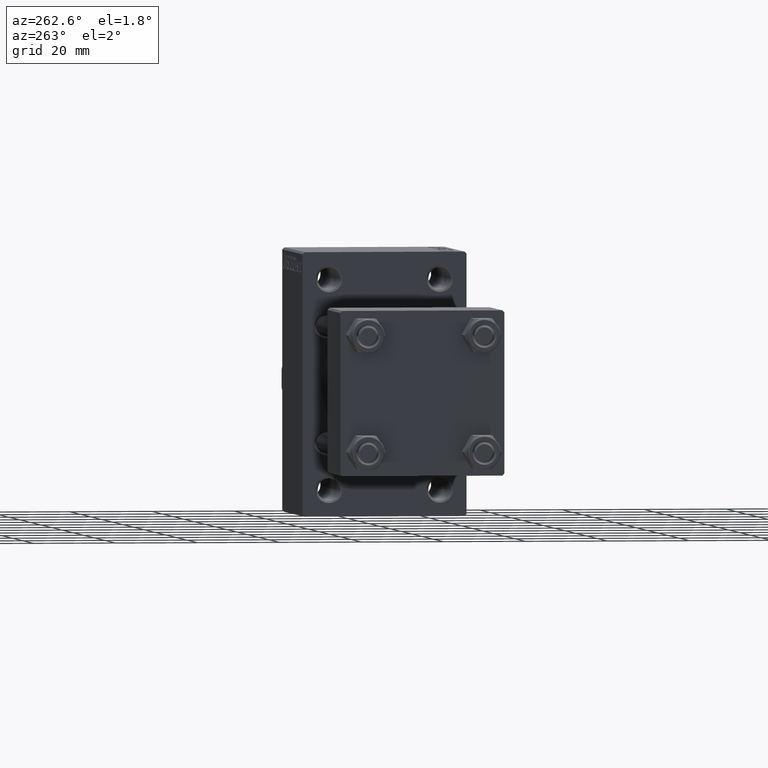
[diagram: clean part render]
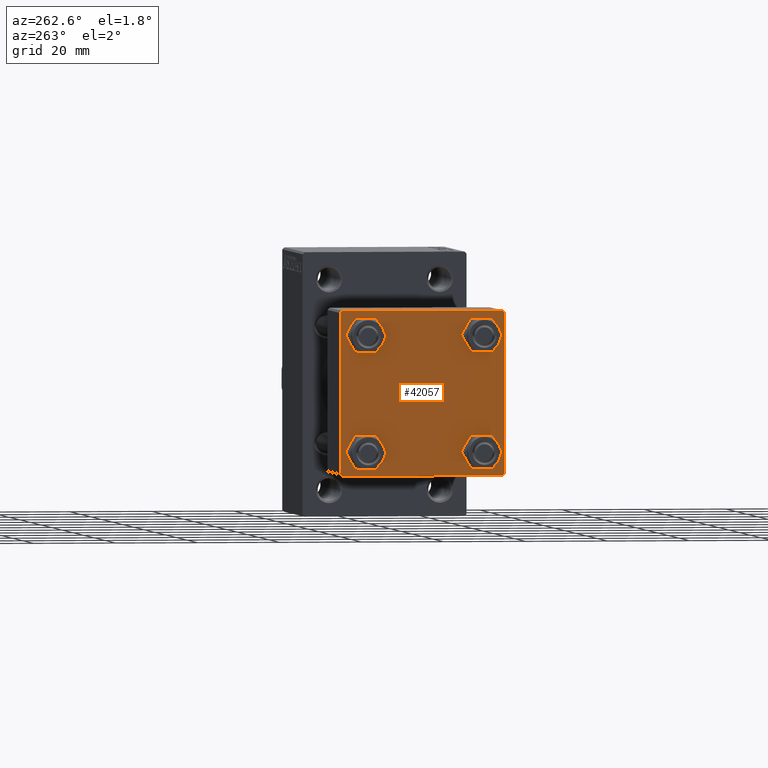
[diagram: same view with one face highlighted and labeled with its STEP entity id]
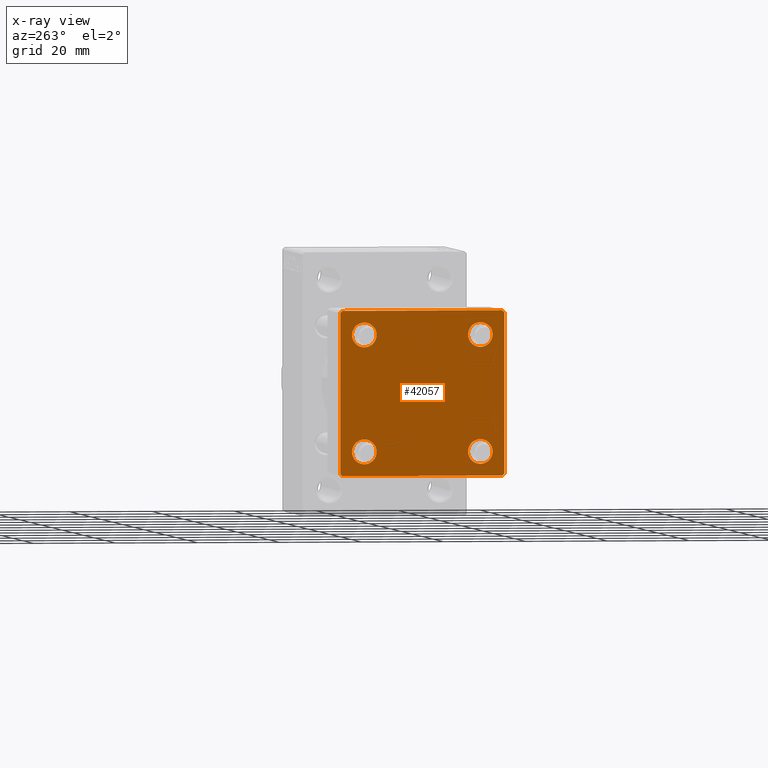
[diagram: x-ray of the same camera — body ghosted, the highlighted face saturated]
A machine part, auxiliary view. The second image highlights one B-rep face of the part: STEP entity #42057.
The next image is the same camera in x-ray: the body ghosted, the highlighted face saturated — about 0% of this face is hidden behind the body in this view.
In plain terms, the highlighted planar face has unit normal (-1, 0, 0).
Its self-contained STEP definition (entity closure, byte-faithful):
#753 = VERTEX_POINT ( 'NONE', #2098 ) ;
#996 = CARTESIAN_POINT ( 'NONE',  ( -0.000000000000000000, -19.74999999999992539, 19.75000000000006395 ) ) ;
#1052 = LINE ( 'NONE', #29406, #14915 ) ;
#1267 = CARTESIAN_POINT ( 'NONE',  ( 0.000000000000000000, -20.00000000000000355, 19.49999999999998224 ) ) ;
#1324 = DIRECTION ( 'NONE',  ( 0.000000000000000000, 8.673617379884036705E-17, -1.000000000000000000 ) ) ;
#2098 = CARTESIAN_POINT ( 'NONE',  ( 0.000000000000000000, 19.50000000000000000, 20.00000000000000000 ) ) ;
#2108 = VERTEX_POINT ( 'NONE', #1267 ) ;
#2149 = ORIENTED_EDGE ( 'NONE', *, *, #35361, .F. ) ;
#2578 = DIRECTION ( 'NONE',  ( -0.000000000000000000, 0.000000000000000000, 1.000000000000000000 ) ) ;
#2580 = CARTESIAN_POINT ( 'NONE',  ( -0.000000000000000000, 19.74999999999986855, -19.75000000000014211 ) ) ;
#2769 = DIRECTION ( 'NONE',  ( 0.000000000000000000, 0.000000000000000000, 1.000000000000000000 ) ) ;
#3556 = EDGE_CURVE ( 'NONE', #14846, #39460, #4332, .T. ) ;
#3620 = LINE ( 'NONE', #43721, #26251 ) ;
#3720 = VERTEX_POINT ( 'NONE', #8261 ) ;
#4235 = CARTESIAN_POINT ( 'NONE',  ( 0.000000000000000000, 14.14999999999999858, -11.15000000000001812 ) ) ;
#4332 = CIRCLE ( 'NONE', #18916, 3.000000000000004441 ) ;
#4754 = FACE_BOUND ( 'NONE', #26559, .T. ) ;
#4979 = CARTESIAN_POINT ( 'NONE',  ( 0.000000000000000000, -14.14999999999999503, 17.14999999999998792 ) ) ;
#5000 = ORIENTED_EDGE ( 'NONE', *, *, #7564, .T. ) ;
#5558 = CIRCLE ( 'NONE', #22441, 2.999999999999983569 ) ;
#6316 = AXIS2_PLACEMENT_3D ( 'NONE', #26950, #30091, #23353 ) ;
#6685 = AXIS2_PLACEMENT_3D ( 'NONE', #19861, #7686, #8805 ) ;
#6933 = ORIENTED_EDGE ( 'NONE', *, *, #10974, .T. ) ;
#7305 = DIRECTION ( 'NONE',  ( 0.000000000000000000, -1.000000000000000000, -2.602085213965210149E-16 ) ) ;
#7487 = CARTESIAN_POINT ( 'NONE',  ( 0.000000000000000000, 14.14999999999999858, -14.15000000000000036 ) ) ;
#7547 = CARTESIAN_POINT ( 'NONE',  ( 0.000000000000000000, -14.14999999999999503, 14.15000000000000391 ) ) ;
#7564 = EDGE_CURVE ( 'NONE', #3720, #21094, #3620, .T. ) ;
#7686 = DIRECTION ( 'NONE',  ( 1.000000000000000000, 0.000000000000000000, 0.000000000000000000 ) ) ;
#7922 = CARTESIAN_POINT ( 'NONE',  ( 0.000000000000000000, -14.14999999999999503, 11.15000000000002345 ) ) ;
#8261 = CARTESIAN_POINT ( 'NONE',  ( 0.000000000000000000, 20.00000000000000000, 19.49999999999999289 ) ) ;
#8339 = EDGE_CURVE ( 'NONE', #2108, #45733, #19565, .T. ) ;
#8805 = DIRECTION ( 'NONE',  ( 0.000000000000000000, 0.000000000000000000, 1.000000000000000000 ) ) ;
#8958 = LINE ( 'NONE', #20006, #14382 ) ;
#9070 = CARTESIAN_POINT ( 'NONE',  ( 0.000000000000000000, 14.14999999999999858, 17.14999999999998437 ) ) ;
#9174 = CARTESIAN_POINT ( 'NONE',  ( 0.000000000000000000, -14.14999999999999503, -14.15000000000000391 ) ) ;
#9757 = VERTEX_POINT ( 'NONE', #7922 ) ;
#10211 = ORIENTED_EDGE ( 'NONE', *, *, #45782, .T. ) ;
#10366 = EDGE_CURVE ( 'NONE', #42562, #10964, #26357, .T. ) ;
#10964 = VERTEX_POINT ( 'NONE', #9070 ) ;
#10974 = EDGE_CURVE ( 'NONE', #24545, #9757, #5558, .T. ) ;
#10988 = CIRCLE ( 'NONE', #37032, 2.999999999999983569 ) ;
#11055 = DIRECTION ( 'NONE',  ( 0.000000000000000000, 0.000000000000000000, -1.000000000000000000 ) ) ;
#11823 = ORIENTED_EDGE ( 'NONE', *, *, #15110, .T. ) ;
#12164 = EDGE_CURVE ( 'NONE', #9757, #24545, #10988, .T. ) ;
#12688 = FACE_BOUND ( 'NONE', #13313, .T. ) ;
#13313 = EDGE_LOOP ( 'NONE', ( #31402, #39064 ) ) ;
#13348 = CARTESIAN_POINT ( 'NONE',  ( 0.000000000000000000, -14.14999999999999503, -14.15000000000000391 ) ) ;
#13871 = DIRECTION ( 'NONE',  ( -0.000000000000000000, -0.7071067811865524577, -0.7071067811865426878 ) ) ;
#14382 = VECTOR ( 'NONE', #45701, 1000.000000000000000 ) ;
#14846 = VERTEX_POINT ( 'NONE', #31519 ) ;
#14915 = VECTOR ( 'NONE', #7305, 1000.000000000000000 ) ;
#15110 = EDGE_CURVE ( 'NONE', #21094, #17990, #35471, .T. ) ;
#15570 = CARTESIAN_POINT ( 'NONE',  ( 0.000000000000000000, 14.14999999999999858, -17.14999999999998437 ) ) ;
#17251 = LINE ( 'NONE', #31895, #27332 ) ;
#17758 = EDGE_CURVE ( 'NONE', #24612, #34141, #36449, .T. ) ;
#17990 = VERTEX_POINT ( 'NONE', #27862 ) ;
#18319 = ORIENTED_EDGE ( 'NONE', *, *, #8339, .F. ) ;
#18422 = ORIENTED_EDGE ( 'NONE', *, *, #43420, .T. ) ;
#18916 = AXIS2_PLACEMENT_3D ( 'NONE', #13348, #21493, #2769 ) ;
#19565 = LINE ( 'NONE', #23166, #31664 ) ;
#19724 = ORIENTED_EDGE ( 'NONE', *, *, #22378, .T. ) ;
#19861 = CARTESIAN_POINT ( 'NONE',  ( 0.000000000000000000, 14.14999999999999858, 14.15000000000000036 ) ) ;
#20006 = CARTESIAN_POINT ( 'NONE',  ( 0.000000000000000000, -19.75000000000020961, -19.74999999999979394 ) ) ;
#20112 = CARTESIAN_POINT ( 'NONE',  ( 0.000000000000000000, -14.14999999999999503, 14.15000000000000391 ) ) ;
#20201 = CARTESIAN_POINT ( 'NONE',  ( -0.000000000000000000, 19.75000000000013500, 19.74999999999986144 ) ) ;
#21094 = VERTEX_POINT ( 'NONE', #25320 ) ;
#21493 = DIRECTION ( 'NONE',  ( 1.000000000000000000, 0.000000000000000000, 0.000000000000000000 ) ) ;
#21796 = CARTESIAN_POINT ( 'NONE',  ( 0.000000000000000000, -19.50000000000000711, -20.00000000000000000 ) ) ;
#22140 = DIRECTION ( 'NONE',  ( -0.000000000000000000, 0.7071067811865500152, 0.7071067811865451302 ) ) ;
#22378 = EDGE_CURVE ( 'NONE', #753, #3720, #23815, .T. ) ;
#22441 = AXIS2_PLACEMENT_3D ( 'NONE', #20112, #31159, #27558 ) ;
#22554 = EDGE_CURVE ( 'NONE', #10964, #42562, #42728, .T. ) ;
#23166 = CARTESIAN_POINT ( 'NONE',  ( 0.000000000000000000, -20.00000000000000355, 19.99999999999998934 ) ) ;
#23353 = DIRECTION ( 'NONE',  ( 0.000000000000000000, 0.000000000000000000, 1.000000000000000000 ) ) ;
#23815 = LINE ( 'NONE', #20201, #44286 ) ;
#23908 = EDGE_LOOP ( 'NONE', ( #33928, #46179 ) ) ;
#24048 = DIRECTION ( 'NONE',  ( 0.000000000000000000, 0.7071067811865425767, -0.7071067811865525687 ) ) ;
#24138 = EDGE_CURVE ( 'NONE', #39460, #14846, #27364, .T. ) ;
#24302 = DIRECTION ( 'NONE',  ( 0.000000000000000000, 0.000000000000000000, 1.000000000000000000 ) ) ;
#24374 = EDGE_CURVE ( 'NONE', #34141, #24612, #33514, .T. ) ;
#24545 = VERTEX_POINT ( 'NONE', #4979 ) ;
#24612 = VERTEX_POINT ( 'NONE', #15570 ) ;
#25320 = CARTESIAN_POINT ( 'NONE',  ( 0.000000000000000000, 20.00000000000000000, -19.50000000000002132 ) ) ;
#25661 = VECTOR ( 'NONE', #13871, 1000.000000000000000 ) ;
#26217 = LINE ( 'NONE', #996, #34289 ) ;
#26251 = VECTOR ( 'NONE', #11055, 1000.000000000000000 ) ;
#26357 = CIRCLE ( 'NONE', #6316, 2.999999999999983569 ) ;
#26513 = AXIS2_PLACEMENT_3D ( 'NONE', #30468, #45118, #2578 ) ;
#26559 = EDGE_LOOP ( 'NONE', ( #42766, #36166 ) ) ;
#26950 = CARTESIAN_POINT ( 'NONE',  ( 0.000000000000000000, 14.14999999999999858, 14.15000000000000036 ) ) ;
#27329 = FACE_BOUND ( 'NONE', #23908, .T. ) ;
#27332 = VECTOR ( 'NONE', #44381, 1000.000000000000000 ) ;
#27364 = CIRCLE ( 'NONE', #35007, 3.000000000000004441 ) ;
#27558 = DIRECTION ( 'NONE',  ( 0.000000000000000000, 0.000000000000000000, 1.000000000000000000 ) ) ;
#27614 = EDGE_LOOP ( 'NONE', ( #6933, #27817 ) ) ;
#27817 = ORIENTED_EDGE ( 'NONE', *, *, #12164, .T. ) ;
#27862 = CARTESIAN_POINT ( 'NONE',  ( 0.000000000000000000, 19.50000000000000711, -20.00000000000000711 ) ) ;
#28124 = AXIS2_PLACEMENT_3D ( 'NONE', #31920, #30970, #45620 ) ;
#28615 = DIRECTION ( 'NONE',  ( 1.000000000000000000, 0.000000000000000000, 0.000000000000000000 ) ) ;
#28903 = CARTESIAN_POINT ( 'NONE',  ( 0.000000000000000000, -14.14999999999999503, -17.15000000000000924 ) ) ;
#29406 = CARTESIAN_POINT ( 'NONE',  ( 0.000000000000000000, 20.00000000000000000, 20.00000000000000000 ) ) ;
#29717 = VERTEX_POINT ( 'NONE', #30250 ) ;
#29974 = VERTEX_POINT ( 'NONE', #21796 ) ;
#30091 = DIRECTION ( 'NONE',  ( 1.000000000000000000, 0.000000000000000000, 0.000000000000000000 ) ) ;
#30250 = CARTESIAN_POINT ( 'NONE',  ( 0.000000000000000000, -19.49999999999999289, 19.99999999999998934 ) ) ;
#30468 = CARTESIAN_POINT ( 'NONE',  ( 0.000000000000000000, 0.000000000000000000, 0.000000000000000000 ) ) ;
#30970 = DIRECTION ( 'NONE',  ( 1.000000000000000000, 0.000000000000000000, 0.000000000000000000 ) ) ;
#31159 = DIRECTION ( 'NONE',  ( 1.000000000000000000, 0.000000000000000000, 0.000000000000000000 ) ) ;
#31402 = ORIENTED_EDGE ( 'NONE', *, *, #24374, .T. ) ;
#31519 = CARTESIAN_POINT ( 'NONE',  ( 0.000000000000000000, -14.14999999999999503, -11.15000000000000036 ) ) ;
#31664 = VECTOR ( 'NONE', #1324, 1000.000000000000000 ) ;
#31895 = CARTESIAN_POINT ( 'NONE',  ( 0.000000000000000000, 20.00000000000000000, -20.00000000000000711 ) ) ;
#31920 = CARTESIAN_POINT ( 'NONE',  ( 0.000000000000000000, 14.14999999999999858, -14.15000000000000036 ) ) ;
#33514 = CIRCLE ( 'NONE', #28124, 2.999999999999983569 ) ;
#33922 = EDGE_LOOP ( 'NONE', ( #5000, #11823, #18422, #10211, #18319, #40423, #2149, #19724 ) ) ;
#33928 = ORIENTED_EDGE ( 'NONE', *, *, #22554, .T. ) ;
#34141 = VERTEX_POINT ( 'NONE', #4235 ) ;
#34289 = VECTOR ( 'NONE', #22140, 1000.000000000000114 ) ;
#34416 = CARTESIAN_POINT ( 'NONE',  ( 0.000000000000000000, -20.00000000000000000, -19.49999999999999645 ) ) ;
#34536 = FACE_BOUND ( 'NONE', #27614, .T. ) ;
#35003 = PLANE ( 'NONE',  #26513 ) ;
#35007 = AXIS2_PLACEMENT_3D ( 'NONE', #9174, #46388, #24302 ) ;
#35361 = EDGE_CURVE ( 'NONE', #753, #29717, #1052, .T. ) ;
#35471 = LINE ( 'NONE', #2580, #25661 ) ;
#36166 = ORIENTED_EDGE ( 'NONE', *, *, #24138, .T. ) ;
#36355 = DIRECTION ( 'NONE',  ( 0.000000000000000000, 0.000000000000000000, 1.000000000000000000 ) ) ;
#36449 = CIRCLE ( 'NONE', #39512, 2.999999999999983569 ) ;
#36783 = DIRECTION ( 'NONE',  ( 0.000000000000000000, 0.000000000000000000, 1.000000000000000000 ) ) ;
#37032 = AXIS2_PLACEMENT_3D ( 'NONE', #7547, #47178, #36355 ) ;
#39064 = ORIENTED_EDGE ( 'NONE', *, *, #17758, .T. ) ;
#39460 = VERTEX_POINT ( 'NONE', #28903 ) ;
#39512 = AXIS2_PLACEMENT_3D ( 'NONE', #7487, #28615, #36783 ) ;
#40423 = ORIENTED_EDGE ( 'NONE', *, *, #45917, .T. ) ;
#41976 = FACE_OUTER_BOUND ( 'NONE', #33922, .T. ) ;
#42057 = ADVANCED_FACE ( 'NONE', ( #34536, #4754, #12688, #27329, #41976 ), #35003, .T. ) ;
#42562 = VERTEX_POINT ( 'NONE', #44127 ) ;
#42728 = CIRCLE ( 'NONE', #6685, 2.999999999999983569 ) ;
#42766 = ORIENTED_EDGE ( 'NONE', *, *, #3556, .T. ) ;
#43420 = EDGE_CURVE ( 'NONE', #17990, #29974, #17251, .T. ) ;
#43721 = CARTESIAN_POINT ( 'NONE',  ( 0.000000000000000000, 20.00000000000000000, 20.00000000000000000 ) ) ;
#44127 = CARTESIAN_POINT ( 'NONE',  ( 0.000000000000000000, 14.14999999999999858, 11.15000000000001990 ) ) ;
#44286 = VECTOR ( 'NONE', #24048, 999.9999999999998863 ) ;
#44381 = DIRECTION ( 'NONE',  ( 0.000000000000000000, -1.000000000000000000, 1.734723475976807094E-16 ) ) ;
#45118 = DIRECTION ( 'NONE',  ( -1.000000000000000000, 0.000000000000000000, -0.000000000000000000 ) ) ;
#45620 = DIRECTION ( 'NONE',  ( 0.000000000000000000, 0.000000000000000000, 1.000000000000000000 ) ) ;
#45701 = DIRECTION ( 'NONE',  ( 0.000000000000000000, -0.7071067811865401342, 0.7071067811865549002 ) ) ;
#45733 = VERTEX_POINT ( 'NONE', #34416 ) ;
#45782 = EDGE_CURVE ( 'NONE', #29974, #45733, #8958, .T. ) ;
#45917 = EDGE_CURVE ( 'NONE', #2108, #29717, #26217, .T. ) ;
#46179 = ORIENTED_EDGE ( 'NONE', *, *, #10366, .T. ) ;
#46388 = DIRECTION ( 'NONE',  ( 1.000000000000000000, 0.000000000000000000, 0.000000000000000000 ) ) ;
#47178 = DIRECTION ( 'NONE',  ( 1.000000000000000000, 0.000000000000000000, 0.000000000000000000 ) ) ;